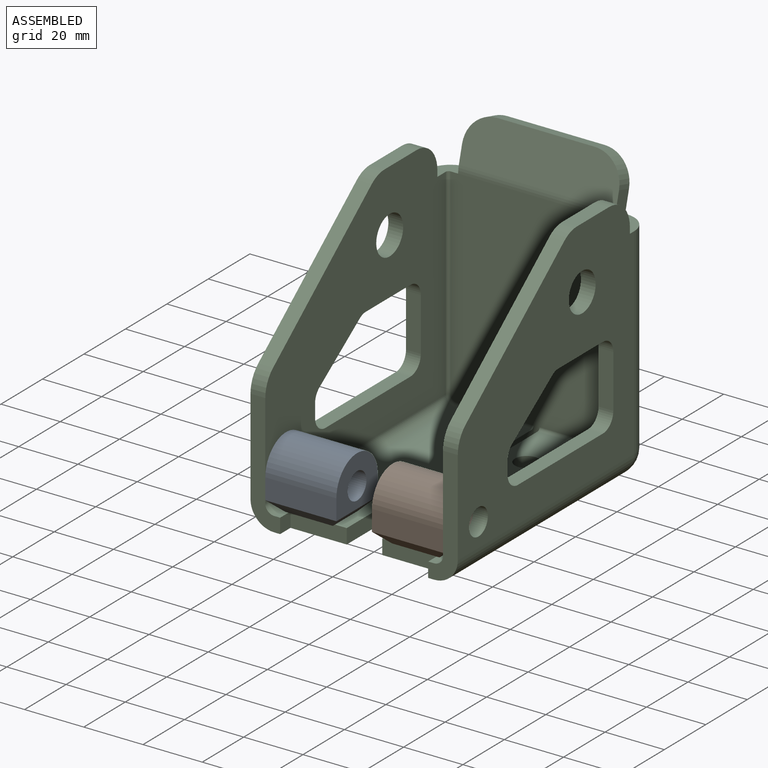
[diagram: assembled view]
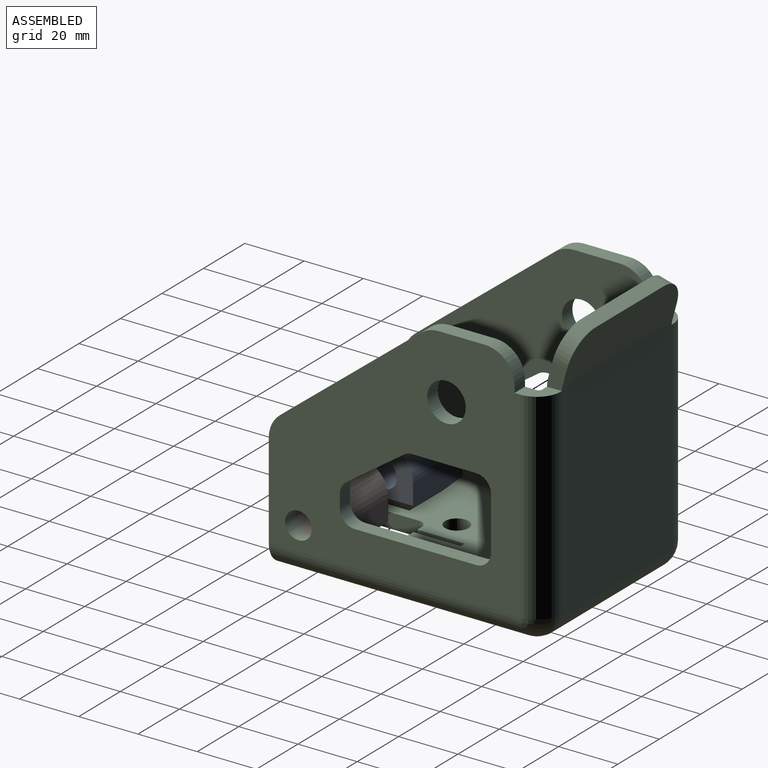
[diagram: assembled view, second angle]
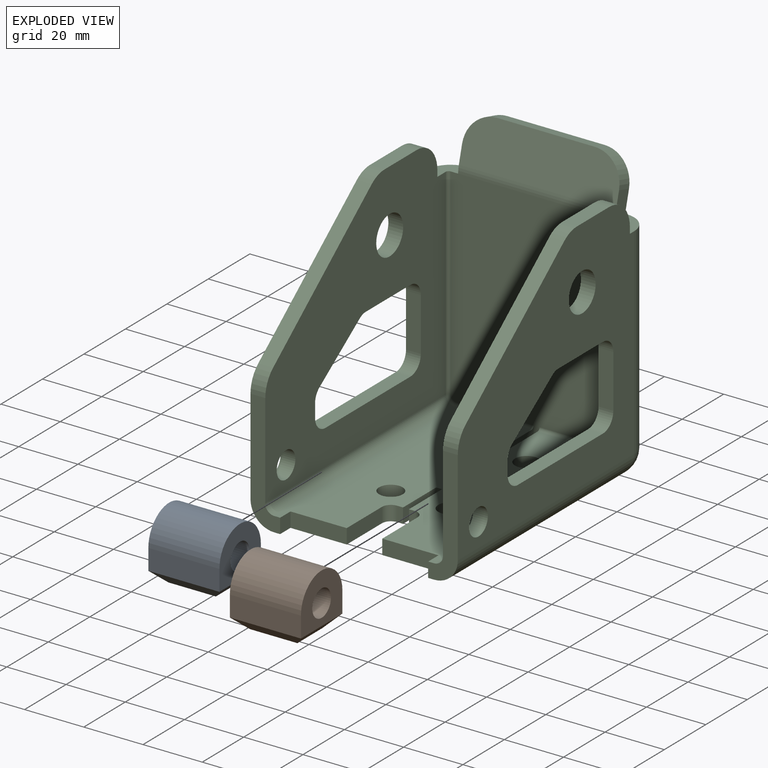
[diagram: exploded view]
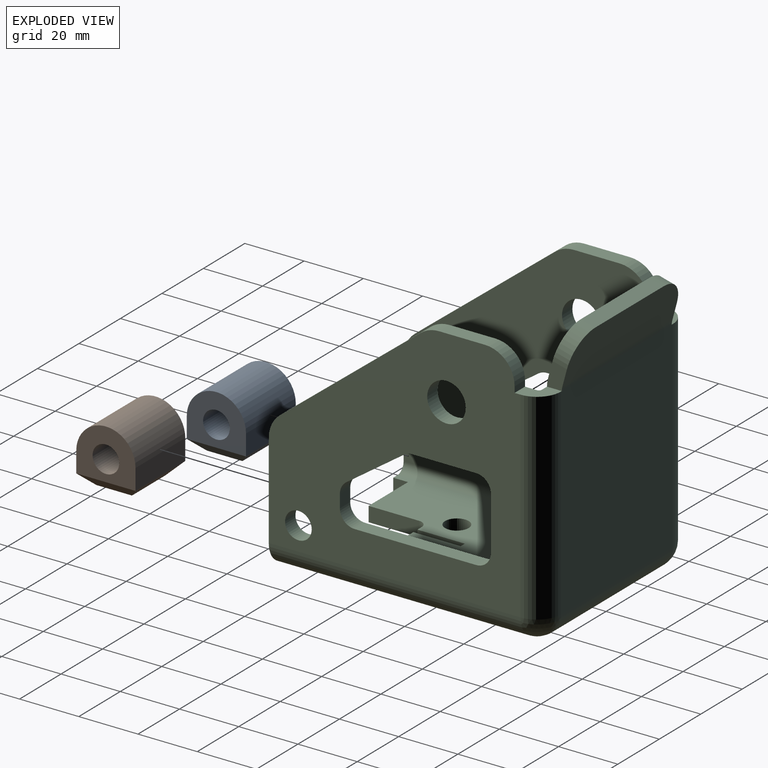
[diagram: exploded view, second angle]
ASSEMBLY  parts=3 mates=5
PART A: 11 faces, bbox 24x20x21 mm
  f0: cylinder r=10mm len=24mm, axis (-1,0,0), area 754mm2, adj f1,f4,f5,f6
  f1: plane 24x7mm, normal (0,-1,0), area 168mm2, adj f0,f5,f6,f7
  f2: plane 16x12mm, normal (0,0,-1), area 192mm2, adj f7,f8,f9,f10
  f3: cylinder r=4.5mm len=24mm, axis (-1,0,0), area 678.6mm2, adj f5,f6
  f4: plane 24x7mm, normal (0,1,0), area 168mm2, adj f0,f5,f6,f10
  f5: plane 20x17mm, normal (1,0,0), area 233.5mm2, adj f0,f1,f3,f4,f8
  f6: plane 20x17mm, normal (-1,0,0), area 233.5mm2, adj f0,f1,f3,f4,f9
  f7: plane 24x4mm, normal (0,-0.71,-0.71), area 113.1mm2, adj f1,f2,f8,f9
  f8: plane 20x4mm, normal (0.71,0,-0.71), area 90.5mm2, adj f2,f5,f7,f10
  f9: plane 20x4mm, normal (-0.71,0,-0.71), area 90.5mm2, adj f2,f6,f7,f10
  f10: plane 24x4mm, normal (0,0.71,-0.71), area 113.1mm2, adj f2,f4,f8,f9
PART B: same geometry as A
PART C: 92 faces, bbox 70x97.3x94 mm
  f0: plane 85x54mm, normal (0,0,-1), area 3824.8mm2, adj f2,f3,f5,f29,f30,f31,f32,f33
  f1: plane 87x54mm, normal (0,0,1), area 3928.8mm2, adj f2,f3,f5,f29,f30,f31,f32,f33
  f2: plane 40.18x10mm, normal (0,-1,0), area 214.1mm2, adj f0,f1,f7,f9,f49,f65,f67,f75
  f3: plane 17x5mm, normal (1,0,0), area 85mm2, adj f0,f1,f52,f53
  f4: plane 10x8.5mm, normal (0,0,1), area 54mm2, adj f7,f9,f12,f13,f14,f45,f68,f86
  f5: plane 40.18x10mm, normal (0,-1,0), area 214.1mm2, adj f0,f1,f6,f8,f51,f66,f70,f76
  f6: plane 85x80mm, normal (-1,0,0), area 4164.7mm2, adj f5,f10,f15,f16,f18,f24,f25,f26
  f7: plane 85x80mm, normal (1,0,0), area 4164.7mm2, adj f2,f4,f11,f14,f17,f19,f20,f21
  f8: plane 87x80mm, normal (1,0,0), area 4300.7mm2, adj f5,f10,f15,f16,f18,f24,f25,f26
  f9: plane 87x80mm, normal (-1,0,0), area 4300.7mm2, adj f2,f4,f11,f14,f17,f19,f20,f21
  f10: plane 15.51x5mm, normal (0,0,1), area 77.5mm2, adj f6,f8,f77,f79
  f11: plane 15.51x5mm, normal (0,0,1), area 77.5mm2, adj f7,f9,f74,f78
  f12: plane 68.01x54mm, normal (0,1,0), area 3672.7mm2, adj f4,f16,f45,f46,f68,f71,f73,f82
  f13: plane 75.43x58mm, normal (0,-1,0), area 4069.8mm2, adj f4,f16,f29,f31,f45,f46,f71,f83
  f14: plane 5x2mm, normal (0,1,0), area 10mm2, adj f4,f7,f9,f78
  f15: plane 5x2mm, normal (0,1,0), area 10mm2, adj f6,f8,f16,f79
  f16: plane 10x8.5mm, normal (0,0,1), area 54mm2, adj f6,f8,f12,f13,f15,f46,f73,f87
  f17: plane 47.5x37.82mm, normal (0,-0.62,0.78), area 303.6mm2, adj f7,f9,f74,f75
  f18: plane 47.5x37.82mm, normal (0,-0.62,0.78), area 303.6mm2, adj f6,f8,f76,f77
  f19: plane 18x5mm, normal (0,-1,0), area 90mm2, adj f7,f9,f58,f59
  f20: plane 41x5mm, normal (0,0,1), area 205mm2, adj f7,f9,f57,f59
  f21: plane 5x4.4mm, normal (0,1,0), area 22mm2, adj f7,f9,f56,f57
  f22: plane 19.43x13.6mm, normal (0,0.57,-0.82), area 118.6mm2, adj f7,f9,f55,f56
  f23: plane 21.57x5mm, normal (0,0,-1), area 107.9mm2, adj f7,f9,f55,f58
  f24: plane 21.57x5mm, normal (0,0,-1), area 107.9mm2, adj f6,f8,f60,f64
  f25: plane 19.43x13.6mm, normal (0,0.57,-0.82), area 118.6mm2, adj f6,f8,f60,f61
  f26: plane 5x4.4mm, normal (0,1,0), area 22mm2, adj f6,f8,f61,f62
  f27: plane 41x5mm, normal (0,0,1), area 205mm2, adj f6,f8,f62,f63
  f28: plane 18x5mm, normal (0,-1,0), area 90mm2, adj f6,f8,f63,f64
  f29: plane 26x6mm, normal (1,0,0), area 129.6mm2, adj f0,f1,f13,f30,f71,f88
  f30: plane 5x2mm, normal (0,1,0), area 10mm2, adj f0,f1,f29,f31
  f31: plane 26x6mm, normal (-1,0,0), area 129.6mm2, adj f0,f1,f13,f30,f71,f84
  f32: cylinder r=4mm len=8mm, axis (0,0,-1), area 125.7mm2, adj f0,f1
  f33: plane 5x2mm, normal (0,-1,0), area 10mm2, adj f0,f1,f38,f53
  f34: plane 17x5mm, normal (-1,0,0), area 85mm2, adj f0,f1,f50,f54
  f35: plane 5x2mm, normal (0,-1,0), area 10mm2, adj f0,f1,f36,f54
  f36: plane 16x5mm, normal (-1,0,0), area 80mm2, adj f0,f1,f35,f37
  f37: plane 5x2mm, normal (0,-1,0), area 10mm2, adj f0,f1,f36,f38
  f38: plane 16x5mm, normal (1,0,0), area 80mm2, adj f0,f1,f33,f37
  f39: cylinder r=4mm len=8mm, axis (0,0,-1), area 125.7mm2, adj f0,f1
  f40: cylinder r=4mm len=8mm, axis (0,0,-1), area 125.7mm2, adj f0,f1
  f41: cylinder r=4mm len=8mm, axis (0,0,-1), area 125.7mm2, adj f0,f1
  f42: plane 53x15.4mm, normal (0,0.97,-0.26), area 802mm2, adj f43,f45,f46,f80,f81,f82
  f43: plane 33x4.83mm, normal (0,0.26,0.97), area 165mm2, adj f42,f44,f80,f81
  f44: plane 53x15.4mm, normal (0,-0.97,0.26), area 802mm2, adj f43,f45,f46,f80,f81,f83
  f45: plane 8.34x6.71mm, normal (1,0,0), area 39.6mm2, adj f4,f12,f13,f42,f44,f81,f82,f83
  f46: plane 8.34x6.71mm, normal (-1,0,0), area 39.6mm2, adj f12,f13,f16,f42,f44,f80,f82,f83
  f47: cylinder r=4.5mm len=9mm, axis (1,0,0), area 141.4mm2, adj f7,f9
  f48: cylinder r=4.5mm len=9mm, axis (1,0,0), area 141.4mm2, adj f6,f8
  f49: plane 5x5mm, normal (-1,0,0), area 25mm2, adj f0,f1,f2,f50
  f50: plane 19x5mm, normal (0,-1,0), area 95mm2, adj f0,f1,f34,f49
  f51: plane 5x5mm, normal (1,0,0), area 25mm2, adj f0,f1,f5,f52
  f52: plane 19x5mm, normal (0,-1,0), area 95mm2, adj f0,f1,f3,f51
  f53: cylinder r=3mm len=5mm, axis (0,0,-1), area 23.6mm2, adj f0,f1,f3,f33
  f54: cylinder r=3mm len=5mm, axis (0,0,1), area 23.6mm2, adj f0,f1,f34,f35
  f55: cylinder r=5mm len=5mm, axis (-1,0,0), area 15.3mm2, adj f7,f9,f22,f23
  f56: cylinder r=5mm len=5mm, axis (-1,0,0), area 24mm2, adj f7,f9,f21,f22
  f57: cylinder r=5mm len=5mm, axis (-1,0,0), area 39.3mm2, adj f7,f9,f20,f21
  f58: cylinder r=5mm len=5mm, axis (-1,0,0), area 39.3mm2, adj f7,f9,f19,f23
  f59: cylinder r=5mm len=5mm, axis (-1,0,0), area 39.3mm2, adj f7,f9,f19,f20
  f60: cylinder r=5mm len=5mm, axis (-1,0,0), area 15.3mm2, adj f6,f8,f24,f25
  f61: cylinder r=5mm len=5mm, axis (-1,0,0), area 24mm2, adj f6,f8,f25,f26
  f62: cylinder r=5mm len=5mm, axis (-1,0,0), area 39.3mm2, adj f6,f8,f26,f27
  f63: cylinder r=5mm len=5mm, axis (-1,0,0), area 39.3mm2, adj f6,f8,f27,f28
  f64: cylinder r=5mm len=5mm, axis (-1,0,0), area 39.3mm2, adj f6,f8,f24,f28
  f65: cylinder r=3mm len=87mm, axis (0,-1,0), area 410mm2, adj f1,f2,f9,f85
  f66: cylinder r=3mm len=87mm, axis (0,1,0), area 410mm2, adj f1,f5,f8,f89
  f67: cylinder r=8mm len=85mm, axis (0,1,0), area 1068.1mm2, adj f0,f2,f7,f69
  f68: cylinder r=8mm len=68mm, axis (0,0,-1), area 854.5mm2, adj f4,f7,f12,f69
  f69: sphere r=8mm, area 100.5mm2, adj f67,f68,f71
  f70: cylinder r=8mm len=85mm, axis (0,-1,0), area 1068.1mm2, adj f0,f5,f6,f72
  f71: cylinder r=8mm len=54mm, axis (-1,0,0), area 672.4mm2, adj f0,f12,f13,f29,f31,f69,f72
  f72: sphere r=8mm, area 100.5mm2, adj f70,f71,f73
  f73: cylinder r=8mm len=68mm, axis (0,0,1), area 854.5mm2, adj f6,f12,f16,f72
  f74: cylinder r=10mm len=6.23mm, axis (-1,0,0), area 33.6mm2, adj f7,f9,f11,f17
  f75: cylinder r=10mm len=7.82mm, axis (1,0,0), area 44.9mm2, adj f2,f7,f9,f17
  f76: cylinder r=10mm len=7.82mm, axis (1,0,0), area 44.9mm2, adj f5,f6,f8,f18
  f77: cylinder r=10mm len=6.23mm, axis (-1,0,0), area 33.6mm2, adj f6,f8,f10,f18
  f78: cylinder r=10mm len=10mm, axis (-1,0,0), area 78.5mm2, adj f7,f9,f11,f14
  f79: cylinder r=10mm len=10mm, axis (-1,0,0), area 78.5mm2, adj f6,f8,f10,f15
  f80: cylinder r=10mm len=10.95mm, axis (0,-0.97,0.26), area 78.5mm2, adj f42,f43,f44,f46
  f81: cylinder r=10mm len=10.95mm, axis (0,0.97,-0.26), area 78.5mm2, adj f42,f43,f44,f45
  f82: cylinder r=5mm len=53mm, axis (-1,0,0), area 69.4mm2, adj f12,f42,f45,f46
  f83: cylinder r=10mm len=53mm, axis (-1,0,0), area 138.8mm2, adj f13,f44,f45,f46
  f84: cylinder r=1mm len=26mm, axis (1,0,0), area 40.8mm2, adj f1,f13,f31,f85
  f85: torus R=2mm, axis (0,1,0), area 6.5mm2, adj f13,f65,f84,f86
  f86: cylinder r=1mm len=68mm, axis (0,0,1), area 106.8mm2, adj f4,f9,f13,f85
  f87: cylinder r=1mm len=68mm, axis (0,0,-1), area 106.8mm2, adj f8,f13,f16,f89
  f88: cylinder r=1mm len=26mm, axis (1,0,0), area 40.8mm2, adj f1,f13,f29,f89
  f89: torus R=2mm, axis (0,1,0), area 6.5mm2, adj f13,f66,f87,f88
  f90: cylinder r=6.5mm len=13mm, axis (1,0,0), area 204.2mm2, adj f7,f9
  f91: cylinder r=6.5mm len=13mm, axis (1,0,0), area 204.2mm2, adj f6,f8
PLACE A t=(-30.12,-39.44,-43.27)mm
PLACE B t=(5.88,-39.44,-43.27)mm
PLACE C t=(-0.12,-2.94,-48.27)mm fixed
MATE parallel B.f1 <-> C.f2  axis (0,-1,0) through (17.88,-49.44,-35.77)mm
MATE planar B.f0 <-> C.f47  axis (1,0,0) through (29.88,-39.44,-32.27)mm
MATE cylindrical B.f0 <-> C.f47  axis (-1,0,0) through (17.88,-39.44,-32.27)mm
MATE parallel C.f5 <-> A.f1  axis (0,-1,0) through (-27.12,-49.44,-48.27)mm
MATE planar A.f6 <-> C.f47  axis (-1,0,0) through (-30.12,-39.44,-31.52)mm
